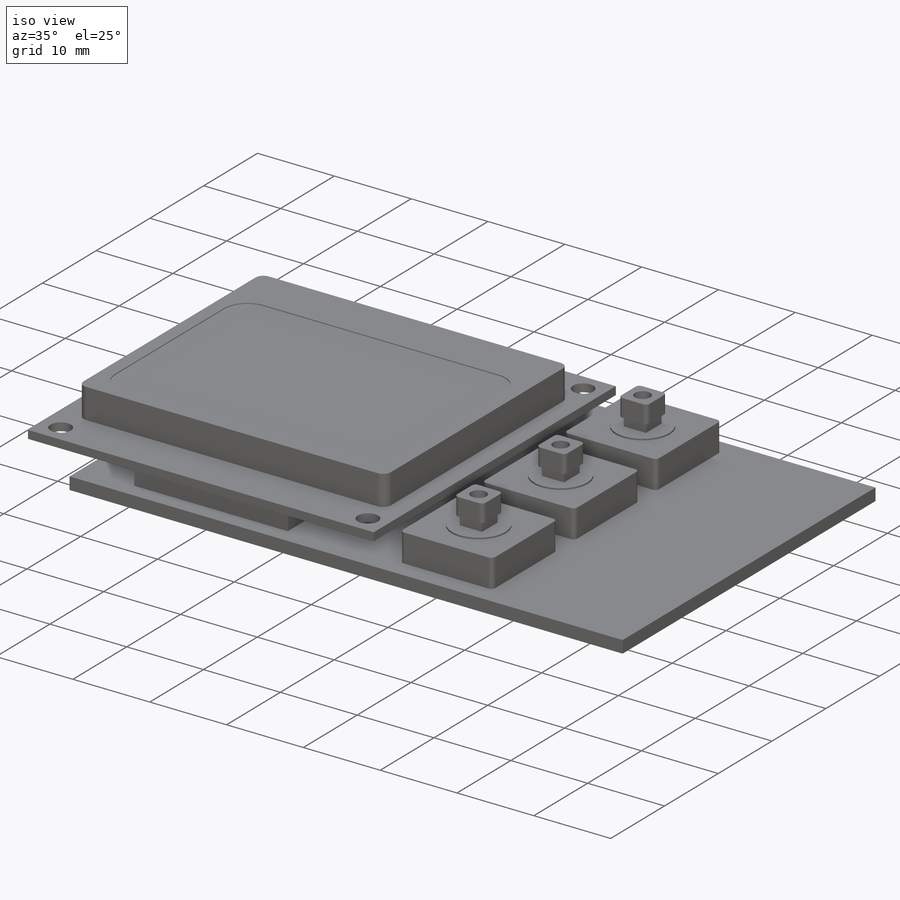
[diagram: iso view]
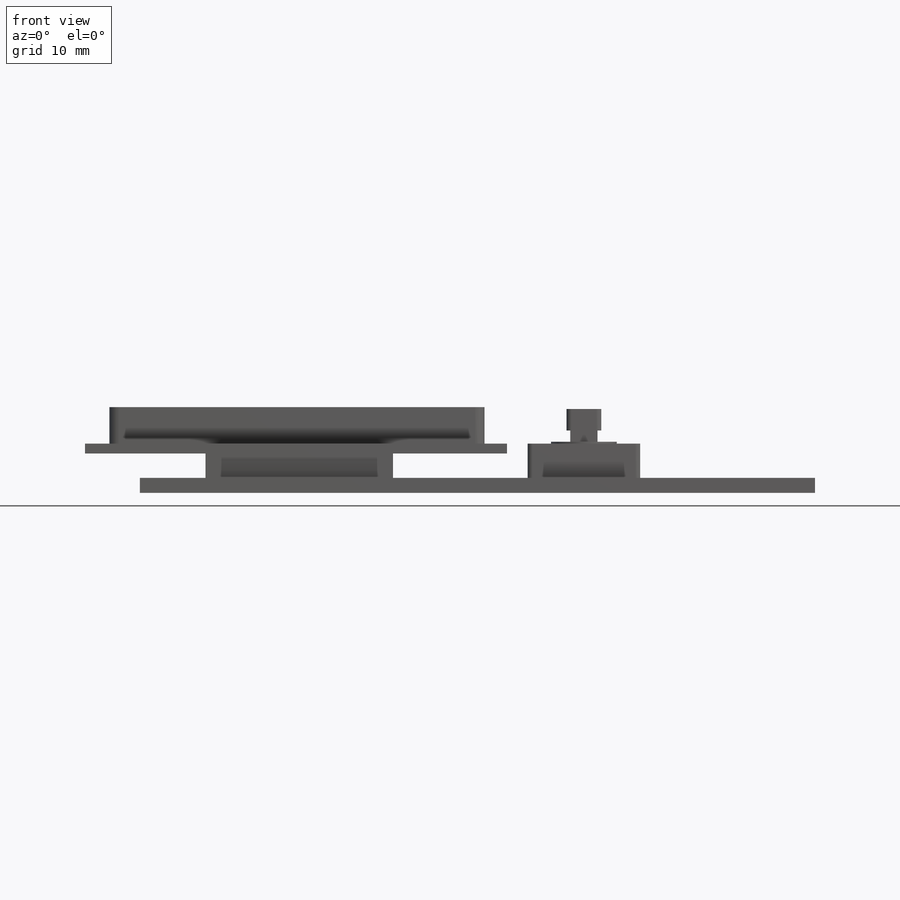
[diagram: front view]
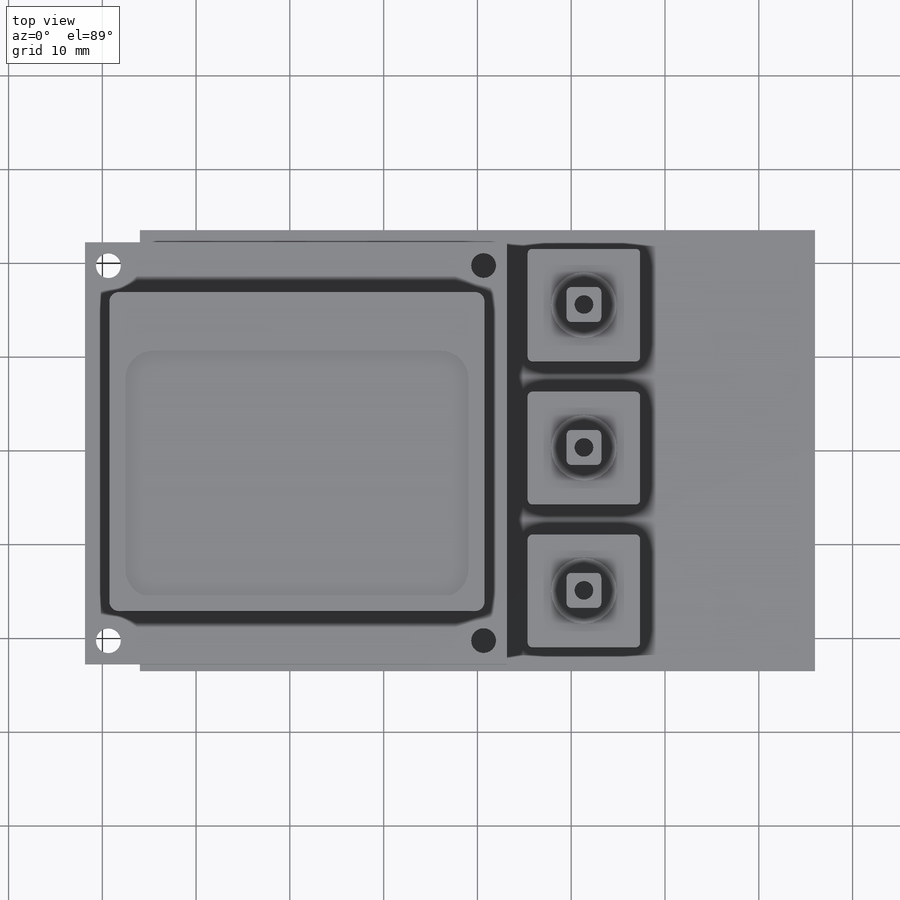
[diagram: top view]
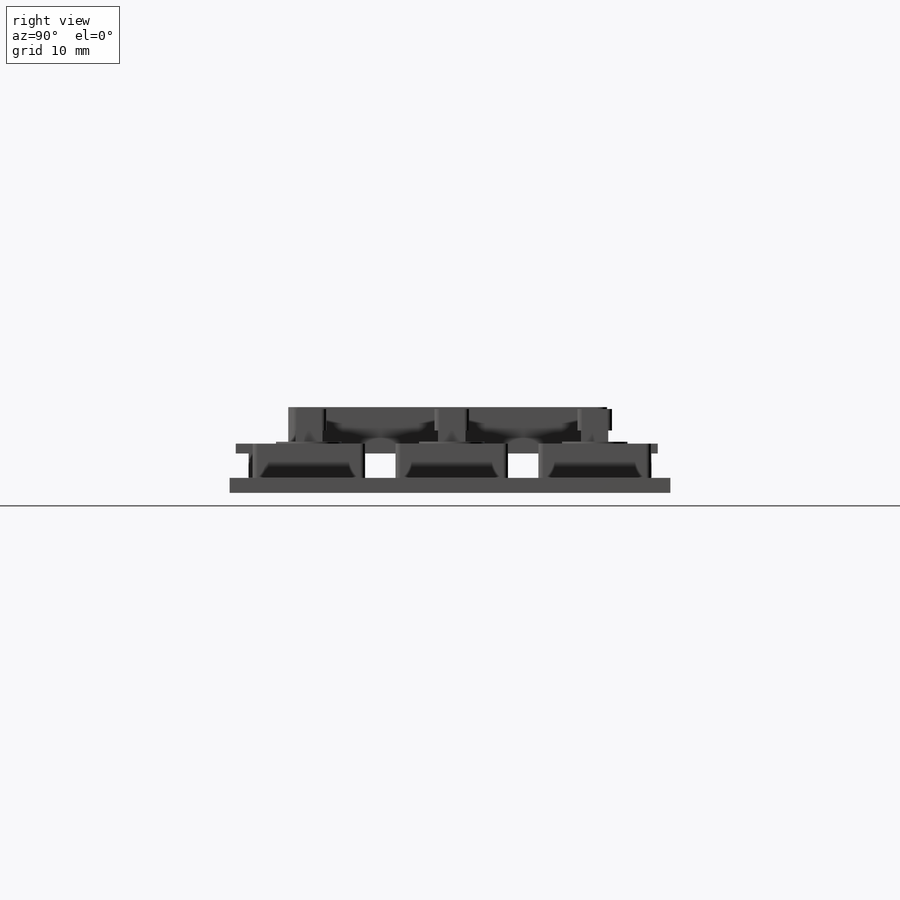
[diagram: right view]
SOLIDWORKS PART (.sldprt)
format: sldprt  version: not decoded by parser v0  size: 561,664 bytes
history: native  units: mm
features: sketch x10, extrude x8, cut_extrude x2, fillet x2, material x1, pattern_linear x1 (+12 scaffold rows collapsed)
feature tree (36):
  scaffold x12  (default folders/planes/origin — collapsed)
  material  "Material <not specified>"
  sketch  "Sketch1"  dims[c1.D1=~24.874982mm c1.D2=~61.81056mm c2.D1=72.0mm c2.D2=47.0mm]
  extrude  "Boss-Extrude1"  Depth=1.6mm
  sketch  "Sketch2"  dims[c1.D1=~2.589964mm c1.D2=~24.388824mm c2.D1=7.0mm c2.D2=20.0mm c2.D3=3.0mm c2.D4=72.0mm]
  extrude  "Boss-Extrude2"  Depth=2.6mm
  sketch  "Sketch3"  dims[c1.D5=2.65mm c1.D1=~44.532985mm c1.D2=~40.432209mm c2.D1=45.0mm c2.D2=45.0mm c2.D3=1.35mm c2.D4=5.85mm c2.D6=2.5mm c2.D7=2.5mm c2.D8=45.0mm]
  extrude  "Boss-Extrude3"  Depth=1.05mm
  sketch  "Sketch4"  dims[c1.D1=~33.215833mm c1.D2=~39.905673mm c2.D1=40.0mm c2.D2=34.0mm c2.D3=5.4mm c2.D4=2.6mm]
  extrude  "Boss-Extrude4"  Depth=3.9mm
  sketch  "Sketch5"  dims[c1.D4=3.0mm c1.D1=~24.814639mm c1.D2=~36.949698mm c2.D1=36.6mm c2.D2=26.3mm c2.D3=1.45mm c2.D4=26.3mm]
  cut_extrude  "Cut-Extrude1"  Depth=0.1mm
  fillet  "Fillet1"  Radius=1mm
  sketch  "Sketch6"  dims[c1.D1=~8.090039mm c1.D2=~8.867927mm c2.D1=12.0mm c2.D2=12.0mm c2.D3=2.45mm c2.D4=2.2mm]
  extrude  "Boss-Extrude5"  Depth=3.65mm
  sketch  "Sketch7"  dims[c1.D1=~4.17161mm c1.D2=~4.588045mm c2.D1=3.7mm c2.D2=3.7mm]
  extrude  "Boss-Extrude6"  Depth=0.2mm
  sketch  "Sketch8"  dims[c1.D1=~2.807747mm c1.D2=~2.36013mm c2.D1=2.9mm]
  extrude  "Boss-Extrude7"  Depth=1.2mm
  sketch  "Sketch9"  dims[c1.D1=~4.260475mm c1.D2=~3.871577mm c2.D1=3.7mm]
  extrude  "Boss-Extrude8"  Depth=2.3mm
  fillet  "Fillet2"  Radius=0.5mm
  sketch  "Sketch10"  dims[D1=3.7mm]
  cut_extrude  "Cut-Extrude2"  Depth=3mm
  pattern_linear  "LPattern1"  Count1=3 Count2=1 Spacing1=15.24mm Spacing2=15.24mm
decode coverage: 23 of 23 modeling features carry decoded parameters
note: ~ marks probable driven/reference dimensions
note: suppression state not decoded; provenance and decode notes live in map.json
